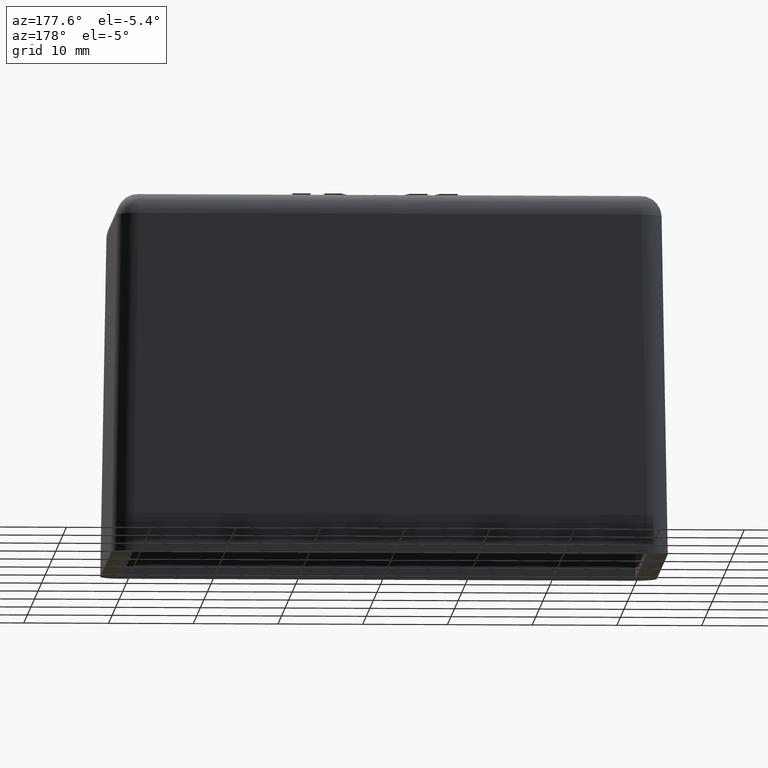
[diagram: clean part render]
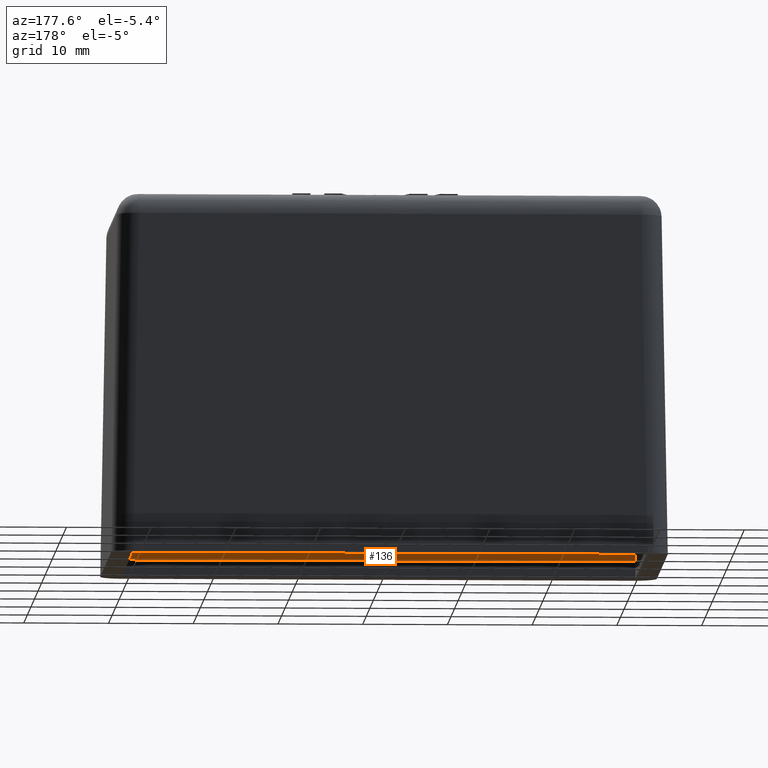
[diagram: same view with one face highlighted and labeled with its STEP entity id]
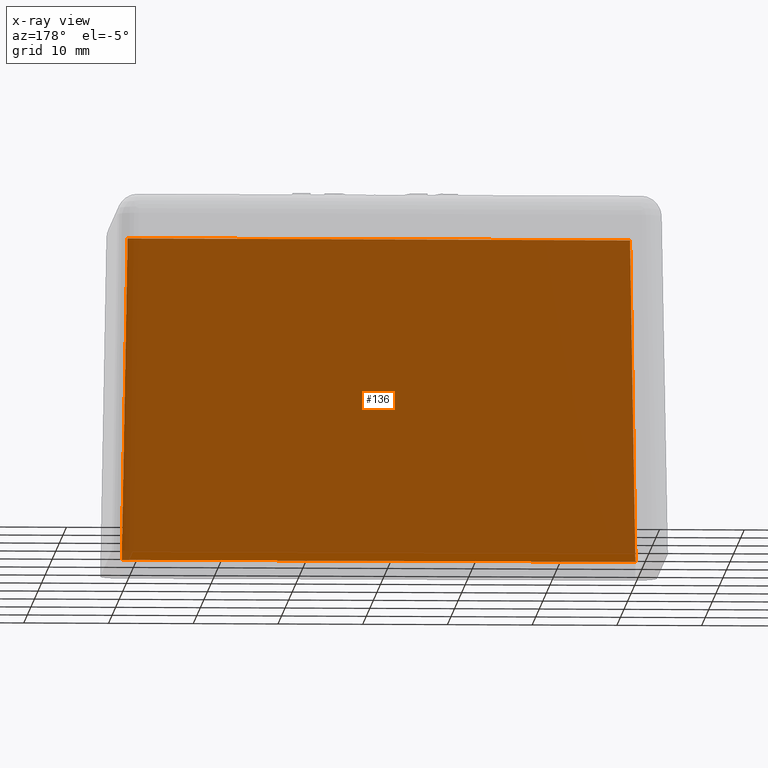
[diagram: x-ray of the same camera — body ghosted, the highlighted face saturated]
A machine part, auxiliary view. The second image highlights one B-rep face of the part: STEP entity #136.
The next image is the same camera in x-ray: the body ghosted, the highlighted face saturated — about 98% of this face is hidden behind the body in this view.
In plain terms, the highlighted planar face has unit normal (0, -0.9998, 0.0175).
Its self-contained STEP definition (entity closure, byte-faithful):
#136 = ADVANCED_FACE( '', ( #326 ), #327, .F. );
#326 = FACE_OUTER_BOUND( '', #571, .T. );
#327 = PLANE( '', #572 );
#571 = EDGE_LOOP( '', ( #1250, #1251, #1252, #1253 ) );
#572 = AXIS2_PLACEMENT_3D( '', #1254, #1255, #1256 );
#1250 = ORIENTED_EDGE( '', *, *, #1814, .F. );
#1251 = ORIENTED_EDGE( '', *, *, #1810, .T. );
#1252 = ORIENTED_EDGE( '', *, *, #1813, .T. );
#1253 = ORIENTED_EDGE( '', *, *, #1806, .F. );
#1254 = CARTESIAN_POINT( '', ( -30.0000000000000, -15.0000000000000, 20.0000000000000 ) );
#1255 = DIRECTION( '', ( 0.000000000000000, -0.999847695156391, 0.0174524064372835 ) );
#1256 = DIRECTION( '', ( 0.000000000000000, -0.0174524064372835, -0.999847695156391 ) );
#1806 = EDGE_CURVE( '', #2186, #2178, #2189, .F. );
#1810 = EDGE_CURVE( '', #2191, #2195, #2197, .F. );
#1813 = EDGE_CURVE( '', #2195, #2178, #2200, .T. );
#1814 = EDGE_CURVE( '', #2191, #2186, #2201, .T. );
#2178 = VERTEX_POINT( '', #3049 );
#2186 = VERTEX_POINT( '', #3062 );
#2189 = LINE( '', #3067, #3068 );
#2191 = VERTEX_POINT( '', #3070 );
#2195 = VERTEX_POINT( '', #3076 );
#2197 = LINE( '', #3079, #3080 );
#2200 = LINE( '', #3085, #3086 );
#2201 = LINE( '', #3087, #3088 );
#3049 = CARTESIAN_POINT( '', ( 30.3141911687079, -15.3141911687079, 2.00000000000000 ) );
#3062 = CARTESIAN_POINT( '', ( -30.3141911687079, -15.3141911687079, 2.00000000000000 ) );
#3067 = CARTESIAN_POINT( '', ( -30.0000000000000, -15.3141911687079, 2.00000000000000 ) );
#3068 = VECTOR( '', #3396, 1000.00000000000 );
#3070 = CARTESIAN_POINT( '', ( -29.6508987014356, -14.6508987014356, 40.0000000000000 ) );
#3076 = CARTESIAN_POINT( '', ( 29.6508987014356, -14.6508987014356, 40.0000000000000 ) );
#3079 = CARTESIAN_POINT( '', ( -30.0000000000000, -14.6508987014356, 40.0000000000000 ) );
#3080 = VECTOR( '', #3400, 1000.00000000000 );
#3085 = CARTESIAN_POINT( '', ( 30.0000000000000, -15.0000000000000, 20.0000000000000 ) );
#3086 = VECTOR( '', #3403, 1000.00000000000 );
#3087 = CARTESIAN_POINT( '', ( -30.0000000000000, -15.0000000000000, 20.0000000000000 ) );
#3088 = VECTOR( '', #3404, 1000.00000000000 );
#3396 = DIRECTION( '', ( -1.00000000000000, 0.000000000000000, 0.000000000000000 ) );
#3400 = DIRECTION( '', ( -1.00000000000000, 0.000000000000000, 0.000000000000000 ) );
#3403 = DIRECTION( '', ( 0.0174497491606827, -0.0174497491606827, -0.999695459881887 ) );
#3404 = DIRECTION( '', ( -0.0174497491606827, -0.0174497491606827, -0.999695459881887 ) );